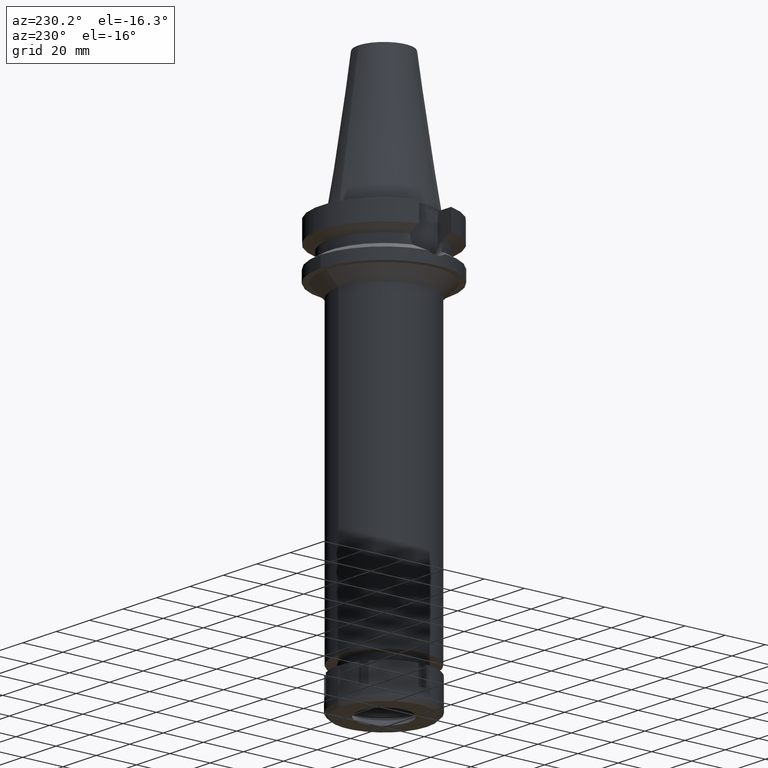
[diagram: clean part render]
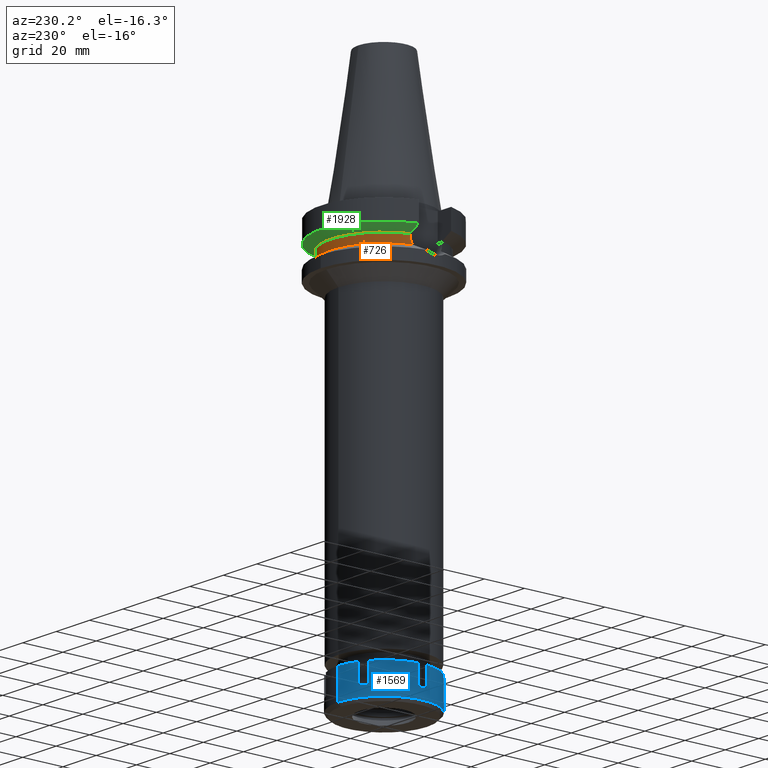
[diagram: same view with three faces highlighted in distinct colors, each labeled with its STEP entity id]
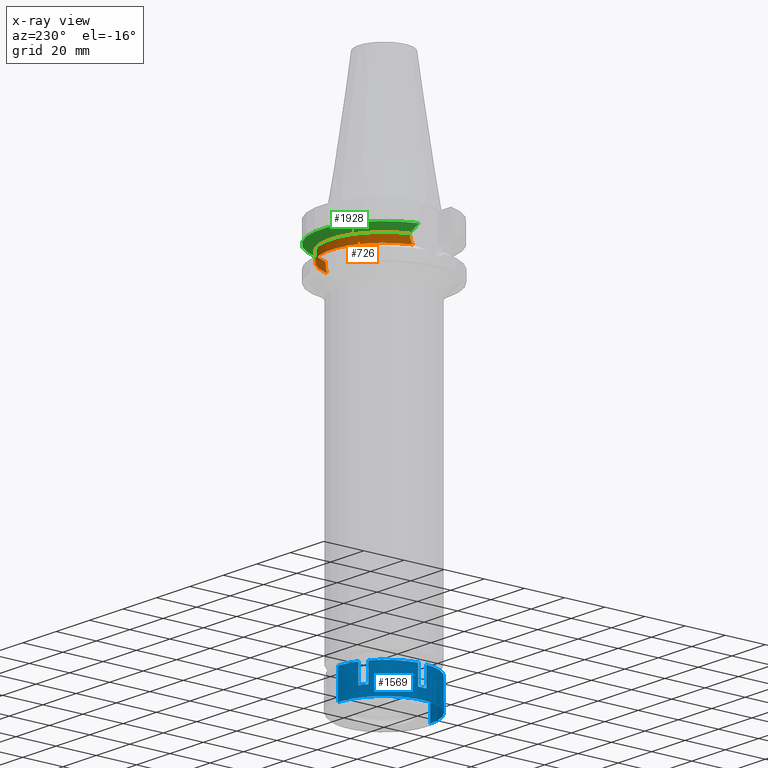
[diagram: x-ray of the same camera — body ghosted, the three highlighted faces saturated]
A machine part, auxiliary view with three faces highlighted in distinct colors.
The next image is the same camera in x-ray (body ghosted, the three faces saturated) — at least one of them is partly hidden behind the body in this view.
Their STEP definitions:

[orange] entity #726 — the highlighted cylindrical surface (partial cylindrical patch) has radius 26.5 mm, axis along (0, 0, -1).
#40 = EDGE_CURVE ( 'NONE', #931, #1241, #3394, .T. ) ;
#65 = VERTEX_POINT ( 'NONE', #3170 ) ;
#120 = CARTESIAN_POINT ( 'NONE',  ( -25.28049982587671707, 7.946985634402442322, -16.24435369772060156 ) ) ;
#121 = DIRECTION ( 'NONE',  ( 0.0000000000000000000, 0.0000000000000000000, -1.000000000000000000 ) ) ;
#156 = CARTESIAN_POINT ( 'NONE',  ( 25.24772266958000344, 8.050000000000000711, -14.94999999999999929 ) ) ;
#181 = EDGE_LOOP ( 'NONE', ( #574, #1745, #1380, #1038, #3477, #805 ) ) ;
#227 = AXIS2_PLACEMENT_3D ( 'NONE', #1535, #121, #2093 ) ;
#272 = EDGE_CURVE ( 'NONE', #931, #2746, #3145, .T. ) ;
#285 = VECTOR ( 'NONE', #1588, 1000.000000000000114 ) ;
#314 = DIRECTION ( 'NONE',  ( -0.9527442516822307583, 0.3037735849057093818, 0.0000000000000000000 ) ) ;
#417 = CARTESIAN_POINT ( 'NONE',  ( -25.36818304348092923, 7.663708172131208585, -17.48836484279920711 ) ) ;
#574 = ORIENTED_EDGE ( 'NONE', *, *, #2832, .T. ) ;
#623 = CARTESIAN_POINT ( 'NONE',  ( -25.27269574104415994, 7.971769475022786544, -16.08146184953518443 ) ) ;
#637 = CARTESIAN_POINT ( 'NONE',  ( -25.30215616128705136, 7.877576232114727794, -16.61085564858990082 ) ) ;
#726 = ADVANCED_FACE ( 'NONE', ( #3458 ), #2062, .T. ) ;
#740 = CARTESIAN_POINT ( 'NONE',  ( 25.37572817765628841, 7.637723572231249314, -17.49814693643546448 ) ) ;
#788 = CARTESIAN_POINT ( 'NONE',  ( 25.24772413102000002, 8.049995416383998403, -14.45229202342000008 ) ) ;
#805 = ORIENTED_EDGE ( 'NONE', *, *, #2508, .F. ) ;
#907 = CARTESIAN_POINT ( 'NONE',  ( -25.29454717857531421, 7.902012029789251102, -16.48868902742450970 ) ) ;
#931 = VERTEX_POINT ( 'NONE', #2563 ) ;
#1027 = CARTESIAN_POINT ( 'NONE',  ( 25.53175183775000079, 7.097862220092999941, -18.74774300138999905 ) ) ;
#1035 = EDGE_CURVE ( 'NONE', #65, #1241, #2869, .T. ) ;
#1038 = ORIENTED_EDGE ( 'NONE', *, *, #40, .T. ) ;
#1067 = VERTEX_POINT ( 'NONE', #1508 ) ;
#1203 = DIRECTION ( 'NONE',  ( 0.0000000000000000000, 0.0000000000000000000, 1.000000000000000000 ) ) ;
#1224 = EDGE_CURVE ( 'NONE', #2746, #1315, #2648, .T. ) ;
#1241 = VERTEX_POINT ( 'NONE', #2162 ) ;
#1307 = CARTESIAN_POINT ( 'NONE',  ( 25.35411833098577716, 7.708843546321432427, -17.27003765534289670 ) ) ;
#1315 = VERTEX_POINT ( 'NONE', #788 ) ;
#1380 = ORIENTED_EDGE ( 'NONE', *, *, #272, .F. ) ;
#1437 = CARTESIAN_POINT ( 'NONE',  ( -25.24772216375000156, 8.050001586471001502, -14.45224487658000001 ) ) ;
#1492 = DIRECTION ( 'NONE',  ( 0.0000000000000000000, 0.0000000000000000000, -1.000000000000000000 ) ) ;
#1508 = CARTESIAN_POINT ( 'NONE',  ( -25.24772216375000156, 8.050001586471001502, -14.45224487658000001 ) ) ;
#1527 = CARTESIAN_POINT ( 'NONE',  ( 25.24772266958000344, 8.050000000000000711, -14.94999999999999929 ) ) ;
#1532 = CARTESIAN_POINT ( 'NONE',  ( -25.32121872273786067, 7.815971166074239029, -16.87703378351244154 ) ) ;
#1535 = CARTESIAN_POINT ( 'NONE',  ( 0.0000000000000000000, 2.183177848839999781E-14, 78.27000000000001023 ) ) ;
#1588 = DIRECTION ( 'NONE',  ( 2.936344683098950112E-06, -9.209448786820827461E-06, 0.9999999999532819261 ) ) ;
#1735 = CARTESIAN_POINT ( 'NONE',  ( 0.0000000000000000000, 1.065333950388000029E-14, -14.45225699861000024 ) ) ;
#1745 = ORIENTED_EDGE ( 'NONE', *, *, #1224, .F. ) ;
#1757 = CARTESIAN_POINT ( 'NONE',  ( -25.31954463780457587, 7.821394976198481785, -16.85491936549455971 ) ) ;
#1792 = CARTESIAN_POINT ( 'NONE',  ( -25.43788636140676118, 7.435506143573715754, -18.11669712823439582 ) ) ;
#1827 = CARTESIAN_POINT ( 'NONE',  ( -25.31205759391835741, 7.845621557329842233, -16.75326793494526711 ) ) ;
#1837 = CARTESIAN_POINT ( 'NONE',  ( 25.32550226136618932, 7.802082245155967932, -16.93251888162995655 ) ) ;
#1850 = CARTESIAN_POINT ( 'NONE',  ( 25.32419265906722927, 7.806329682138427373, -16.91574545218137615 ) ) ;
#2010 = CARTESIAN_POINT ( 'NONE',  ( 0.0000000000000000000, 0.0000000000000000000, -18.74774300138999905 ) ) ;
#2062 = CYLINDRICAL_SURFACE ( 'NONE', #227, 26.50000000000000000 ) ;
#2093 = DIRECTION ( 'NONE',  ( 0.0000000000000000000, -1.000000000000000000, 0.0000000000000000000 ) ) ;
#2136 = CARTESIAN_POINT ( 'NONE',  ( 25.39164478449283635, 7.584820969905358368, -17.65194245033610088 ) ) ;
#2162 = CARTESIAN_POINT ( 'NONE',  ( -25.53175183775000079, 7.097862220092999941, -18.74774300138999905 ) ) ;
#2212 = AXIS2_PLACEMENT_3D ( 'NONE', #2010, #1203, #3112 ) ;
#2357 = CARTESIAN_POINT ( 'NONE',  ( 25.48481820018147914, 7.266687417059683796, -18.43221401827393890 ) ) ;
#2508 = EDGE_CURVE ( 'NONE', #1067, #65, #2802, .T. ) ;
#2509 = CARTESIAN_POINT ( 'NONE',  ( -25.24772266958000344, 8.050000000000018474, -15.27000127552689257 ) ) ;
#2563 = CARTESIAN_POINT ( 'NONE',  ( 25.53175183775000079, 7.097862220092999941, -18.74774300138999905 ) ) ;
#2630 = CARTESIAN_POINT ( 'NONE',  ( 25.44392473217112283, 7.408251102527441567, -18.11706870839242001 ) ) ;
#2633 = AXIS2_PLACEMENT_3D ( 'NONE', #1735, #1492, #314 ) ;
#2644 = CARTESIAN_POINT ( 'NONE',  ( 25.34387967354658855, 7.742345491376021016, -17.15662736174668979 ) ) ;
#2648 = LINE ( 'NONE', #156, #285 ) ;
#2746 = VERTEX_POINT ( 'NONE', #2839 ) ;
#2775 = CARTESIAN_POINT ( 'NONE',  ( -25.24772266958000344, 8.050000000000000711, -14.94999999999999929 ) ) ;
#2802 = LINE ( 'NONE', #1437, #3165 ) ;
#2832 = EDGE_CURVE ( 'NONE', #1067, #1315, #3589, .T. ) ;
#2839 = CARTESIAN_POINT ( 'NONE',  ( 25.24772266958000344, 8.050000000000000711, -14.94999999999999929 ) ) ;
#2869 = B_SPLINE_CURVE_WITH_KNOTS ( 'NONE', 3,
 ( #2775, #2509, #3113, #623, #120, #907, #637, #1827, #3486, #1757, #1532, #417, #1792, #3171 ),
 .UNSPECIFIED., .F., .F.,
 ( 4, 2, 2, 1, 1, 2, 2, 4 ),
 ( 0.0000000000000000000, 0.2500000000000045519, 0.3750000000000056066, 0.4375000000000061062, 0.4687500000000052736, 0.4843750000000049960, 0.5000000000000046629, 1.000000000000000000 ),
 .UNSPECIFIED. ) ;
#2952 = CARTESIAN_POINT ( 'NONE',  ( 25.24772266957998923, 8.049999999999998934, -15.58999073683360237 ) ) ;
#2989 = CARTESIAN_POINT ( 'NONE',  ( 25.27269246206562414, 7.973290322427805776, -16.24535685338602775 ) ) ;
#3095 = DIRECTION ( 'NONE',  ( -1.016224662221004237E-06, -3.187251308830015568E-06, -0.9999999999944043649 ) ) ;
#3112 = DIRECTION ( 'NONE',  ( 0.0000000000000000000, 1.000000000000000000, 0.0000000000000000000 ) ) ;
#3113 = CARTESIAN_POINT ( 'NONE',  ( -25.25396593744603635, 8.030896968456861629, -15.59377931114971183 ) ) ;
#3145 = B_SPLINE_CURVE_WITH_KNOTS ( 'NONE', 3,
 ( #1027, #2357, #2630, #2136, #740, #1307, #2644, #3254, #3201, #1837, #1850, #2989, #2952, #1527 ),
 .UNSPECIFIED., .F., .F.,
 ( 4, 2, 2, 1, 1, 2, 2, 4 ),
 ( 0.0000000000000000000, 0.2499999999999773515, 0.3749999999999648059, 0.4374999999999586997, 0.4687499999999569789, 0.4843749999999561462, 0.4999999999999552580, 1.000000000000000000 ),
 .UNSPECIFIED. ) ;
#3165 = VECTOR ( 'NONE', #3095, 1000.000000000000114 ) ;
#3170 = CARTESIAN_POINT ( 'NONE',  ( -25.24772266958000344, 8.050000000000000711, -14.94999999999999929 ) ) ;
#3171 = CARTESIAN_POINT ( 'NONE',  ( -25.53175183775000079, 7.097862220092999941, -18.74774300138999905 ) ) ;
#3201 = CARTESIAN_POINT ( 'NONE',  ( 25.32844325893252702, 7.792538688759799825, -16.96970524096439448 ) ) ;
#3254 = CARTESIAN_POINT ( 'NONE',  ( 25.33292553851903151, 7.777985707518505265, -17.02558215514781992 ) ) ;
#3394 = CIRCLE ( 'NONE', #2212, 26.50000000000000000 ) ;
#3458 = FACE_OUTER_BOUND ( 'NONE', #181, .T. ) ;
#3477 = ORIENTED_EDGE ( 'NONE', *, *, #1035, .F. ) ;
#3486 = CARTESIAN_POINT ( 'NONE',  ( -25.31652055493196229, 7.831184758220201658, -16.81426458566338411 ) ) ;
#3589 = CIRCLE ( 'NONE', #2633, 26.50000000000000711 ) ;

[blue] entity #1569 — the highlighted cylindrical surface (partial cylindrical patch) has radius 23 mm, axis along (0, 0, -1).
#33 = CARTESIAN_POINT ( 'NONE',  ( -9.724388429820001178, 20.84313483297999881, 0.0000000000000000000 ) ) ;
#34 = AXIS2_PLACEMENT_3D ( 'NONE', #487, #2108, #150 ) ;
#51 = CARTESIAN_POINT ( 'NONE',  ( 0.0000000000000000000, 0.0000000000000000000, 0.0000000000000000000 ) ) ;
#62 = DIRECTION ( 'NONE',  ( 0.0000000000000000000, 0.0000000000000000000, 1.000000000000000000 ) ) ;
#64 = EDGE_CURVE ( 'NONE', #311, #3271, #919, .T. ) ;
#132 = CARTESIAN_POINT ( 'NONE',  ( -13.18849004495999999, -18.84313483298000236, 0.0000000000000000000 ) ) ;
#133 = CARTESIAN_POINT ( 'NONE',  ( -22.91287847478000117, 2.000000000000000000, 0.0000000000000000000 ) ) ;
#150 = DIRECTION ( 'NONE',  ( -0.9962121075990957308, -0.08695652173912968297, 0.0000000000000000000 ) ) ;
#152 = CIRCLE ( 'NONE', #2438, 22.99999999999999289 ) ;
#175 = EDGE_CURVE ( 'NONE', #311, #891, #3573, .T. ) ;
#195 = DIRECTION ( 'NONE',  ( 0.0000000000000000000, 0.0000000000000000000, -1.000000000000000000 ) ) ;
#251 = EDGE_CURVE ( 'NONE', #2191, #2115, #1822, .T. ) ;
#308 = CARTESIAN_POINT ( 'NONE',  ( -13.18849004495999999, 18.84313483298000236, -9.500000000000000000 ) ) ;
#311 = VERTEX_POINT ( 'NONE', #3558 ) ;
#322 = CARTESIAN_POINT ( 'NONE',  ( -13.18849004495999999, -18.84313483298000236, -9.500000000000000000 ) ) ;
#341 = EDGE_CURVE ( 'NONE', #3076, #891, #430, .T. ) ;
#348 = DIRECTION ( 'NONE',  ( 0.0000000000000000000, 0.0000000000000000000, -1.000000000000000000 ) ) ;
#360 = DIRECTION ( 'NONE',  ( 0.0000000000000000000, -1.000000000000000000, 0.0000000000000000000 ) ) ;
#365 = VECTOR ( 'NONE', #62, 1000.000000000000000 ) ;
#386 = ORIENTED_EDGE ( 'NONE', *, *, #491, .F. ) ;
#403 = CARTESIAN_POINT ( 'NONE',  ( 0.0000000000000000000, -23.00000000000000000, -14.50000000000000000 ) ) ;
#405 = CARTESIAN_POINT ( 'NONE',  ( -22.91287847478000117, 2.000000000000000000, 0.0000000000000000000 ) ) ;
#430 = LINE ( 'NONE', #132, #710 ) ;
#441 = DIRECTION ( 'NONE',  ( 0.0000000000000000000, 0.0000000000000000000, 1.000000000000000000 ) ) ;
#453 = ORIENTED_EDGE ( 'NONE', *, *, #1723, .F. ) ;
#471 = ORIENTED_EDGE ( 'NONE', *, *, #3259, .T. ) ;
#487 = CARTESIAN_POINT ( 'NONE',  ( 0.0000000000000000000, 0.0000000000000000000, -9.500000000000000000 ) ) ;
#491 = EDGE_CURVE ( 'NONE', #2473, #1592, #2779, .T. ) ;
#501 = ORIENTED_EDGE ( 'NONE', *, *, #2873, .F. ) ;
#524 = DIRECTION ( 'NONE',  ( 0.0000000000000000000, 0.0000000000000000000, 1.000000000000000000 ) ) ;
#587 = ORIENTED_EDGE ( 'NONE', *, *, #175, .T. ) ;
#659 = DIRECTION ( 'NONE',  ( 0.0000000000000000000, 0.0000000000000000000, 1.000000000000000000 ) ) ;
#677 = DIRECTION ( 'NONE',  ( 0.0000000000000000000, 0.0000000000000000000, -1.000000000000000000 ) ) ;
#687 = DIRECTION ( 'NONE',  ( 0.0000000000000000000, -1.000000000000000000, 0.0000000000000000000 ) ) ;
#689 = EDGE_CURVE ( 'NONE', #2988, #2919, #886, .T. ) ;
#703 = AXIS2_PLACEMENT_3D ( 'NONE', #1496, #3446, #360 ) ;
#710 = VECTOR ( 'NONE', #3497, 1000.000000000000000 ) ;
#782 = VERTEX_POINT ( 'NONE', #3231 ) ;
#796 = CARTESIAN_POINT ( 'NONE',  ( -13.18849004495999999, 18.84313483298000236, -9.500000000000000000 ) ) ;
#823 = AXIS2_PLACEMENT_3D ( 'NONE', #2040, #677, #2059 ) ;
#886 = CIRCLE ( 'NONE', #3335, 23.00000000000000355 ) ;
#891 = VERTEX_POINT ( 'NONE', #322 ) ;
#916 = ORIENTED_EDGE ( 'NONE', *, *, #1780, .T. ) ;
#919 = LINE ( 'NONE', #2038, #1055 ) ;
#1055 = VECTOR ( 'NONE', #659, 1000.000000000000000 ) ;
#1079 = DIRECTION ( 'NONE',  ( 0.0000000000000000000, 0.0000000000000000000, -1.000000000000000000 ) ) ;
#1089 = EDGE_CURVE ( 'NONE', #3327, #1592, #2504, .T. ) ;
#1154 = ORIENTED_EDGE ( 'NONE', *, *, #1452, .T. ) ;
#1217 = DIRECTION ( 'NONE',  ( 0.0000000000000000000, 0.0000000000000000000, -1.000000000000000000 ) ) ;
#1316 = ORIENTED_EDGE ( 'NONE', *, *, #341, .F. ) ;
#1364 = ORIENTED_EDGE ( 'NONE', *, *, #2262, .T. ) ;
#1378 = CARTESIAN_POINT ( 'NONE',  ( 0.0000000000000000000, 23.00000000000000000, 0.0000000000000000000 ) ) ;
#1383 = ORIENTED_EDGE ( 'NONE', *, *, #2325, .T. ) ;
#1452 = EDGE_CURVE ( 'NONE', #2191, #3271, #2273, .T. ) ;
#1474 = DIRECTION ( 'NONE',  ( -0.4227994969487119392, 0.9062232536080258027, 0.0000000000000000000 ) ) ;
#1479 = LINE ( 'NONE', #2573, #365 ) ;
#1496 = CARTESIAN_POINT ( 'NONE',  ( 0.0000000000000000000, 0.0000000000000000000, 0.0000000000000000000 ) ) ;
#1526 = ORIENTED_EDGE ( 'NONE', *, *, #689, .T. ) ;
#1540 = CARTESIAN_POINT ( 'NONE',  ( 0.0000000000000000000, -23.00000000000000000, 0.0000000000000000000 ) ) ;
#1561 = DIRECTION ( 'NONE',  ( -0.5734126106503841802, -0.8192667318688773292, 0.0000000000000000000 ) ) ;
#1568 = VERTEX_POINT ( 'NONE', #2557 ) ;
#1569 = ADVANCED_FACE ( 'NONE', ( #2343 ), #2593, .T. ) ;
#1574 = AXIS2_PLACEMENT_3D ( 'NONE', #2931, #441, #2421 ) ;
#1592 = VERTEX_POINT ( 'NONE', #2293 ) ;
#1674 = ORIENTED_EDGE ( 'NONE', *, *, #251, .F. ) ;
#1717 = EDGE_CURVE ( 'NONE', #3076, #1568, #152, .T. ) ;
#1723 = EDGE_CURVE ( 'NONE', #2988, #3004, #2645, .T. ) ;
#1780 = EDGE_CURVE ( 'NONE', #3211, #3004, #2898, .T. ) ;
#1794 = DIRECTION ( 'NONE',  ( 0.0000000000000000000, 0.0000000000000000000, -1.000000000000000000 ) ) ;
#1822 = LINE ( 'NONE', #2085, #2447 ) ;
#1834 = CARTESIAN_POINT ( 'NONE',  ( -22.91287847478000117, 2.000000000000000000, -9.500000000000000000 ) ) ;
#1869 = DIRECTION ( 'NONE',  ( 0.0000000000000000000, 0.0000000000000000000, -1.000000000000000000 ) ) ;
#1885 = DIRECTION ( 'NONE',  ( 0.0000000000000000000, 0.0000000000000000000, -1.000000000000000000 ) ) ;
#1911 = ORIENTED_EDGE ( 'NONE', *, *, #1717, .T. ) ;
#1993 = DIRECTION ( 'NONE',  ( 0.0000000000000000000, 0.0000000000000000000, -1.000000000000000000 ) ) ;
#2038 = CARTESIAN_POINT ( 'NONE',  ( -9.724388429822001356, -20.84313483297999881, -9.500000000000000000 ) ) ;
#2040 = CARTESIAN_POINT ( 'NONE',  ( 0.0000000000000000000, 0.0000000000000000000, -9.500000000000000000 ) ) ;
#2059 = DIRECTION ( 'NONE',  ( -0.5734126106504978670, 0.8192667318687978373, 0.0000000000000000000 ) ) ;
#2085 = CARTESIAN_POINT ( 'NONE',  ( 0.0000000000000000000, -23.00000000000000000, 0.0000000000000000000 ) ) ;
#2108 = DIRECTION ( 'NONE',  ( 0.0000000000000000000, 0.0000000000000000000, -1.000000000000000000 ) ) ;
#2115 = VERTEX_POINT ( 'NONE', #403 ) ;
#2158 = AXIS2_PLACEMENT_3D ( 'NONE', #3216, #195, #3115 ) ;
#2191 = VERTEX_POINT ( 'NONE', #1540 ) ;
#2196 = ORIENTED_EDGE ( 'NONE', *, *, #2685, .F. ) ;
#2257 = ORIENTED_EDGE ( 'NONE', *, *, #64, .F. ) ;
#2262 = EDGE_CURVE ( 'NONE', #2765, #2115, #2960, .T. ) ;
#2273 = CIRCLE ( 'NONE', #703, 23.00000000000000000 ) ;
#2282 = VECTOR ( 'NONE', #1993, 1000.000000000000000 ) ;
#2284 = CARTESIAN_POINT ( 'NONE',  ( -9.724388429823001445, -20.84313483297999881, 0.0000000000000000000 ) ) ;
#2293 = CARTESIAN_POINT ( 'NONE',  ( -9.724388429820001178, 20.84313483297999881, -9.500000000000000000 ) ) ;
#2325 = EDGE_CURVE ( 'NONE', #782, #2765, #2780, .T. ) ;
#2343 = FACE_OUTER_BOUND ( 'NONE', #3361, .T. ) ;
#2347 = DIRECTION ( 'NONE',  ( -0.9962121075990957308, 0.08695652173912968297, 0.0000000000000000000 ) ) ;
#2368 = CARTESIAN_POINT ( 'NONE',  ( -13.18849004495999999, -18.84313483298000236, 0.0000000000000000000 ) ) ;
#2411 = CARTESIAN_POINT ( 'NONE',  ( 0.0000000000000000000, 0.0000000000000000000, 0.0000000000000000000 ) ) ;
#2421 = DIRECTION ( 'NONE',  ( 0.0000000000000000000, 1.000000000000000000, 0.0000000000000000000 ) ) ;
#2438 = AXIS2_PLACEMENT_3D ( 'NONE', #2411, #1869, #1561 ) ;
#2447 = VECTOR ( 'NONE', #2659, 1000.000000000000000 ) ;
#2473 = VERTEX_POINT ( 'NONE', #3051 ) ;
#2504 = CIRCLE ( 'NONE', #823, 23.00000000000000355 ) ;
#2557 = CARTESIAN_POINT ( 'NONE',  ( -22.91287847478000117, -2.000000000000000000, 0.0000000000000000000 ) ) ;
#2573 = CARTESIAN_POINT ( 'NONE',  ( -22.91287847478000117, -2.000000000000000000, -9.500000000000000000 ) ) ;
#2593 = CYLINDRICAL_SURFACE ( 'NONE', #2615, 23.00000000000000000 ) ;
#2615 = AXIS2_PLACEMENT_3D ( 'NONE', #51, #1217, #687 ) ;
#2645 = LINE ( 'NONE', #133, #3014 ) ;
#2659 = DIRECTION ( 'NONE',  ( 0.0000000000000000000, 0.0000000000000000000, -1.000000000000000000 ) ) ;
#2685 = EDGE_CURVE ( 'NONE', #3327, #2919, #3299, .T. ) ;
#2765 = VERTEX_POINT ( 'NONE', #2808 ) ;
#2776 = AXIS2_PLACEMENT_3D ( 'NONE', #3351, #348, #1474 ) ;
#2779 = LINE ( 'NONE', #33, #2282 ) ;
#2780 = LINE ( 'NONE', #1378, #3328 ) ;
#2808 = CARTESIAN_POINT ( 'NONE',  ( 0.0000000000000000000, 23.00000000000000000, -14.50000000000000000 ) ) ;
#2853 = CARTESIAN_POINT ( 'NONE',  ( 0.0000000000000000000, 0.0000000000000000000, 0.0000000000000000000 ) ) ;
#2873 = EDGE_CURVE ( 'NONE', #3211, #1568, #1479, .T. ) ;
#2898 = CIRCLE ( 'NONE', #34, 23.00000000000000355 ) ;
#2919 = VERTEX_POINT ( 'NONE', #3480 ) ;
#2931 = CARTESIAN_POINT ( 'NONE',  ( 0.0000000000000000000, 0.0000000000000000000, -14.50000000000000000 ) ) ;
#2951 = ORIENTED_EDGE ( 'NONE', *, *, #1089, .T. ) ;
#2960 = CIRCLE ( 'NONE', #1574, 23.00000000000000000 ) ;
#2988 = VERTEX_POINT ( 'NONE', #405 ) ;
#3002 = CARTESIAN_POINT ( 'NONE',  ( -22.91287847478000117, -2.000000000000000000, -9.500000000000000000 ) ) ;
#3004 = VERTEX_POINT ( 'NONE', #1834 ) ;
#3014 = VECTOR ( 'NONE', #1885, 1000.000000000000000 ) ;
#3034 = VECTOR ( 'NONE', #524, 1000.000000000000000 ) ;
#3051 = CARTESIAN_POINT ( 'NONE',  ( -9.724388429820001178, 20.84313483297999881, 0.0000000000000000000 ) ) ;
#3076 = VERTEX_POINT ( 'NONE', #2368 ) ;
#3115 = DIRECTION ( 'NONE',  ( -0.4227994969487938182, -0.9062232536079875000, 0.0000000000000000000 ) ) ;
#3211 = VERTEX_POINT ( 'NONE', #3002 ) ;
#3216 = CARTESIAN_POINT ( 'NONE',  ( 0.0000000000000000000, 0.0000000000000000000, -9.500000000000000000 ) ) ;
#3231 = CARTESIAN_POINT ( 'NONE',  ( 0.0000000000000000000, 23.00000000000000000, 0.0000000000000000000 ) ) ;
#3259 = EDGE_CURVE ( 'NONE', #2473, #782, #3562, .T. ) ;
#3271 = VERTEX_POINT ( 'NONE', #2284 ) ;
#3299 = LINE ( 'NONE', #796, #3034 ) ;
#3327 = VERTEX_POINT ( 'NONE', #308 ) ;
#3328 = VECTOR ( 'NONE', #1079, 1000.000000000000000 ) ;
#3335 = AXIS2_PLACEMENT_3D ( 'NONE', #2853, #1794, #2347 ) ;
#3351 = CARTESIAN_POINT ( 'NONE',  ( 0.0000000000000000000, 0.0000000000000000000, 0.0000000000000000000 ) ) ;
#3361 = EDGE_LOOP ( 'NONE', ( #386, #471, #1383, #1364, #1674, #1154, #2257, #587, #1316, #1911, #501, #916, #453, #1526, #2196, #2951 ) ) ;
#3446 = DIRECTION ( 'NONE',  ( 0.0000000000000000000, 0.0000000000000000000, -1.000000000000000000 ) ) ;
#3480 = CARTESIAN_POINT ( 'NONE',  ( -13.18849004495999999, 18.84313483298000236, 0.0000000000000000000 ) ) ;
#3497 = DIRECTION ( 'NONE',  ( 0.0000000000000000000, 0.0000000000000000000, -1.000000000000000000 ) ) ;
#3558 = CARTESIAN_POINT ( 'NONE',  ( -9.724388429823001445, -20.84313483297999881, -9.500000000000000000 ) ) ;
#3562 = CIRCLE ( 'NONE', #2776, 23.00000000000000355 ) ;
#3573 = CIRCLE ( 'NONE', #2158, 23.00000000000001066 ) ;

[green] entity #1928 — the highlighted conical surface has half-angle 60 deg.
#31 = AXIS2_PLACEMENT_3D ( 'NONE', #2690, #3326, #1020 ) ;
#268 = DIRECTION ( 'NONE',  ( 0.0000000000000000000, 1.000000000000000000, 0.0000000000000000000 ) ) ;
#287 = CARTESIAN_POINT ( 'NONE',  ( -30.45402162752999686, 8.050004143464001061, -11.56546833011000075 ) ) ;
#314 = DIRECTION ( 'NONE',  ( -0.9527442516822307583, 0.3037735849057093818, 0.0000000000000000000 ) ) ;
#383 = EDGE_CURVE ( 'NONE', #2174, #1315, #2272, .T. ) ;
#504 = CARTESIAN_POINT ( 'NONE',  ( 26.83754616961824979, 8.049990822617145270, -13.57774887560565880 ) ) ;
#788 = CARTESIAN_POINT ( 'NONE',  ( 25.24772413102000002, 8.049995416383998403, -14.45229202342000008 ) ) ;
#847 = CARTESIAN_POINT ( 'NONE',  ( 0.0000000000000000000, 1.065333950388000029E-14, -13.00888132564000088 ) ) ;
#856 = CARTESIAN_POINT ( 'NONE',  ( 30.45402291365999758, 8.049999277899999583, -11.56551215646999964 ) ) ;
#991 = ORIENTED_EDGE ( 'NONE', *, *, #1716, .T. ) ;
#1020 = DIRECTION ( 'NONE',  ( 0.0000000000000000000, 1.000000000000000000, 0.0000000000000000000 ) ) ;
#1067 = VERTEX_POINT ( 'NONE', #1508 ) ;
#1133 = ORIENTED_EDGE ( 'NONE', *, *, #2832, .F. ) ;
#1139 = EDGE_LOOP ( 'NONE', ( #2419, #2785, #1133, #991 ) ) ;
#1315 = VERTEX_POINT ( 'NONE', #788 ) ;
#1442 = B_SPLINE_CURVE_WITH_KNOTS ( 'NONE', 3,
 ( #3255, #3523, #1851, #3240 ),
 .UNSPECIFIED., .F., .F.,
 ( 4, 4 ),
 ( 0.0000000000000000000, 1.000000000000000000 ),
 .UNSPECIFIED. ) ;
#1492 = DIRECTION ( 'NONE',  ( 0.0000000000000000000, 0.0000000000000000000, -1.000000000000000000 ) ) ;
#1508 = CARTESIAN_POINT ( 'NONE',  ( -25.24772216375000156, 8.050001586471001502, -14.45224487658000001 ) ) ;
#1716 = EDGE_CURVE ( 'NONE', #1067, #3319, #1442, .T. ) ;
#1735 = CARTESIAN_POINT ( 'NONE',  ( 0.0000000000000000000, 1.065333950388000029E-14, -14.45225699861000024 ) ) ;
#1851 = CARTESIAN_POINT ( 'NONE',  ( -28.57295871603884052, 8.050008281890470130, -12.61547480226907147 ) ) ;
#1918 = DIRECTION ( 'NONE',  ( 0.0000000000000000000, 0.0000000000000000000, 1.000000000000000000 ) ) ;
#1928 = ADVANCED_FACE ( 'NONE', ( #2245 ), #2039, .T. ) ;
#2027 = CARTESIAN_POINT ( 'NONE',  ( 25.24772413102000002, 8.049995416383998403, -14.45229202342000008 ) ) ;
#2039 = CONICAL_SURFACE ( 'NONE', #2838, 29.00000000000000000, 1.047197551196400456 ) ;
#2174 = VERTEX_POINT ( 'NONE', #2692 ) ;
#2245 = FACE_OUTER_BOUND ( 'NONE', #1139, .T. ) ;
#2272 = B_SPLINE_CURVE_WITH_KNOTS ( 'NONE', 3,
 ( #856, #3514, #504, #2027 ),
 .UNSPECIFIED., .F., .F.,
 ( 4, 4 ),
 ( 0.0000000000000000000, 1.000000000000000000 ),
 .UNSPECIFIED. ) ;
#2419 = ORIENTED_EDGE ( 'NONE', *, *, #3570, .F. ) ;
#2633 = AXIS2_PLACEMENT_3D ( 'NONE', #1735, #1492, #314 ) ;
#2690 = CARTESIAN_POINT ( 'NONE',  ( 0.0000000000000000000, 1.065333950388000029E-14, -11.56550565266999975 ) ) ;
#2692 = CARTESIAN_POINT ( 'NONE',  ( 30.45402291365999758, 8.049999277899999583, -11.56551215646999964 ) ) ;
#2785 = ORIENTED_EDGE ( 'NONE', *, *, #383, .T. ) ;
#2832 = EDGE_CURVE ( 'NONE', #1067, #1315, #3589, .T. ) ;
#2838 = AXIS2_PLACEMENT_3D ( 'NONE', #847, #1918, #268 ) ;
#2900 = CIRCLE ( 'NONE', #31, 31.50000000000000000 ) ;
#3240 = CARTESIAN_POINT ( 'NONE',  ( -30.45402162752999686, 8.050004143464001061, -11.56546833011000075 ) ) ;
#3255 = CARTESIAN_POINT ( 'NONE',  ( -25.24772216375000156, 8.050001586471001502, -14.45224487658000001 ) ) ;
#3319 = VERTEX_POINT ( 'NONE', #287 ) ;
#3326 = DIRECTION ( 'NONE',  ( 0.0000000000000000000, 0.0000000000000000000, 1.000000000000000000 ) ) ;
#3514 = CARTESIAN_POINT ( 'NONE',  ( 28.57292329962934119, 8.049998556738891864, -12.61549605020568876 ) ) ;
#3523 = CARTESIAN_POINT ( 'NONE',  ( -26.83758148555827461, 8.050003176367949820, -13.57772735096166272 ) ) ;
#3570 = EDGE_CURVE ( 'NONE', #2174, #3319, #2900, .T. ) ;
#3589 = CIRCLE ( 'NONE', #2633, 26.50000000000000711 ) ;